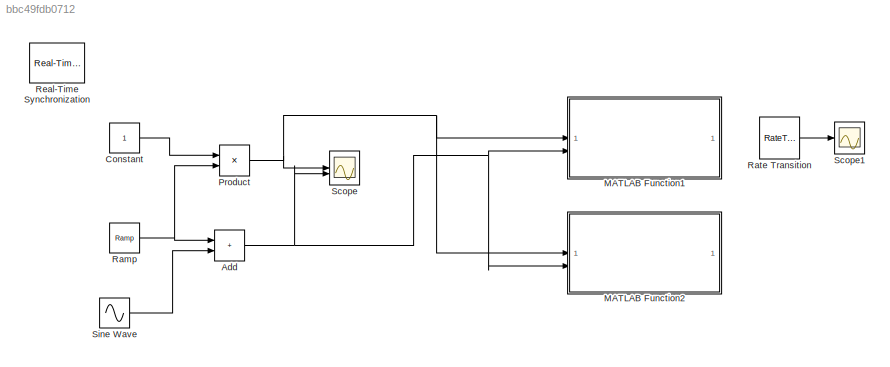
MODEL slx_bbc49fdb0712
KIND model
CONFIG AbsTol = auto
CONFIG EnableMultiTasking = off
CONFIG FixedStep = 0.001
CONFIG MaxStep = auto
CONFIG MinStep = auto
CONFIG RelTol = 1e-3
CONFIG SampleTimeConstraint = Unconstrained
CONFIG SolverName = ode5
CONFIG StartTime = 0.0
CONFIG StopTime = 2
BLOCK [Sum] Add
  IconShape = rectangular
BLOCK [Constant] Constant
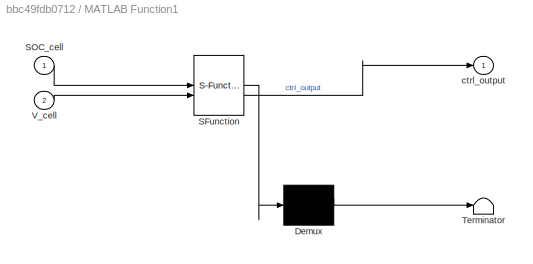
BLOCK [SubSystem] MATLAB Function1
  ErrorFcn = Stateflow.Translate.translate
  PermitHierarchicalResolution = ExplicitOnly
  SFBlockType = MATLAB Function
  TreatAsAtomicUnit = on
BLOCK [Demux] MATLAB Function1/ Demux 
  Outputs = 1
BLOCK [S-Function] MATLAB Function1/ SFunction 
  EnableBusSupport = on
  FunctionName = sf_sfun
  PortCounts = [2 2]
  SFcnIsStateOwnerBlock = off
  SFunctionDeploymentMode = off
  Tag = Stateflow S-Function 1
BLOCK [Terminator] MATLAB Function1/ Terminator 
BLOCK [Inport] MATLAB Function1/SOC_cell
BLOCK [Inport] MATLAB Function1/V_cell
  Port = 2
BLOCK [Outport] MATLAB Function1/ctrl_output
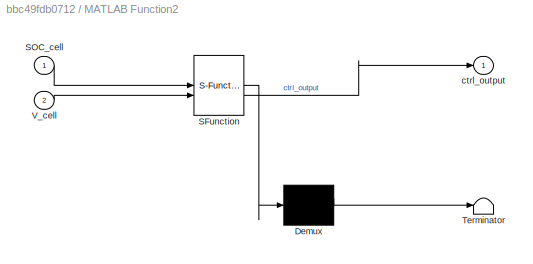
BLOCK [SubSystem] MATLAB Function2
  Commented = on
  ErrorFcn = Stateflow.Translate.translate
  PermitHierarchicalResolution = ExplicitOnly
  SFBlockType = MATLAB Function
  TreatAsAtomicUnit = on
BLOCK [Demux] MATLAB Function2/ Demux 
  Outputs = 1
BLOCK [S-Function] MATLAB Function2/ SFunction 
  EnableBusSupport = on
  FunctionName = sf_sfun
  PortCounts = [2 2]
  SFcnIsStateOwnerBlock = off
  SFunctionDeploymentMode = off
  Tag = Stateflow S-Function 2
BLOCK [Terminator] MATLAB Function2/ Terminator 
BLOCK [Inport] MATLAB Function2/SOC_cell
BLOCK [Inport] MATLAB Function2/V_cell
  Port = 2
BLOCK [Outport] MATLAB Function2/ctrl_output
BLOCK [Product] Product
BLOCK [Reference] Ramp  REF=simulink/Sources/Ramp
  SourceBlock = simulink/Sources/Ramp
  SourceType = Ramp
BLOCK [RateTransition] Rate Transition
  OutPortSampleTime = 0.001
BLOCK [Reference] Real-Time Synchronization  REF=sldrtlib/Real-Time
Synchronization
  SourceBlock = sldrtlib/Real-Time\nSynchronization
  SourceType = Simulink Desktop Real-Time Synchronization
BLOCK [Scope] Scope
  Floating = off
  NumInputPorts = 3
  ScopeSpecificationString = Simulink.scopes.TimeScopeBlockCfg('CurrentConfiguration', extmgr.ConfigurationSet(extmgr.Configuration('Core','General UI',true),extmgr.Configuration('Core','Source UI',true),extmgr.Configuration('Sources','WiredSimulink',true),extmgr.Configuration('Visuals','Time Domain',true,'SerializedDisplays',{struct('MinYLimReal','-0.36366','MaxYLimReal','3.27296','YLabelReal','','MinYLimMag','0.00000','MaxY...<+1343ch>
BLOCK [Scope] Scope1
  Commented = on
  Floating = off
  NumInputPorts = 1
  ScopeSpecificationString = Simulink.scopes.TimeScopeBlockCfg('CurrentConfiguration', extmgr.ConfigurationSet(extmgr.Configuration('Core','General UI',true),extmgr.Configuration('Core','Source UI',true),extmgr.Configuration('Sources','WiredSimulink',true,'DataLoggingVariableName','ScopeData1'),extmgr.Configuration('Visuals','Time Domain',true),extmgr.Configuration('Tools','Plot Navigation',true),extmgr.Configuration('Tools',...<+40ch>
BLOCK [Sin] Sine Wave
  SampleTime = 0
NET Add:1 -> MATLAB Function1:2, MATLAB Function2:2, Scope:2
LINE Constant:1 -> Product:1
NET Product:1 -> MATLAB Function1:1, MATLAB Function2:1, Scope:1
NET Ramp:1 -> Add:1, Product:2
LINE Rate Transition:1 -> Scope1:1
LINE Sine Wave:1 -> Add:2
note: NET lines group one-source signal fan-out (src -> all destinations, sorted); 1:1 wires keep LINE
CHART MATLAB Function1 states=1 transitions=1
  STATE_LABEL 'eML_blk_kernel()'
  STATE_LABEL 'SCRIPT:\n%% connect to the TCP server (C++) in RevPi\nfunction ctrl_output=TCP_Client(SOC_cell, V_cell)\n    % coder.varsize(\'ctrl_output\', [1 1]);  % Fixed size of 1\n    % ctrl_output = double(0);             % Initialize with a double value\n\n    tcp_client = tcpclient("192.168.137.2", 8080);  % Use \'localhost\' if both client and server are on the same machine\n    \n    disp([\'SOC_cell data type: \', ...<+2597ch>'
CHART MATLAB Function2 states=1 transitions=1
  STATE_LABEL 'eML_blk_kernel()'
  STATE_LABEL "SCRIPT:\n%% connect to the TCP server (C++) in RevPi\nfunction ctrl_output=TCP_Client(SOC_cell, V_cell)\n    \n    \n    ctrl_output =  SOC_cell+V_cell;\n    \n\n\nend\n\n\n\n\n% function modbusClient(SOC_cell, V_cell)\n%     persistent client\n%     if isempty(client)\n%         % Connect to Modbus server on RevPi\n%         client = modbus('tcpip', '192.168.137.2', 502);\n%     end\n% \n%     % Write SOC_cell to hol...<+1175ch>"
CHART  states=0 transitions=0
CHART  states=0 transitions=0
